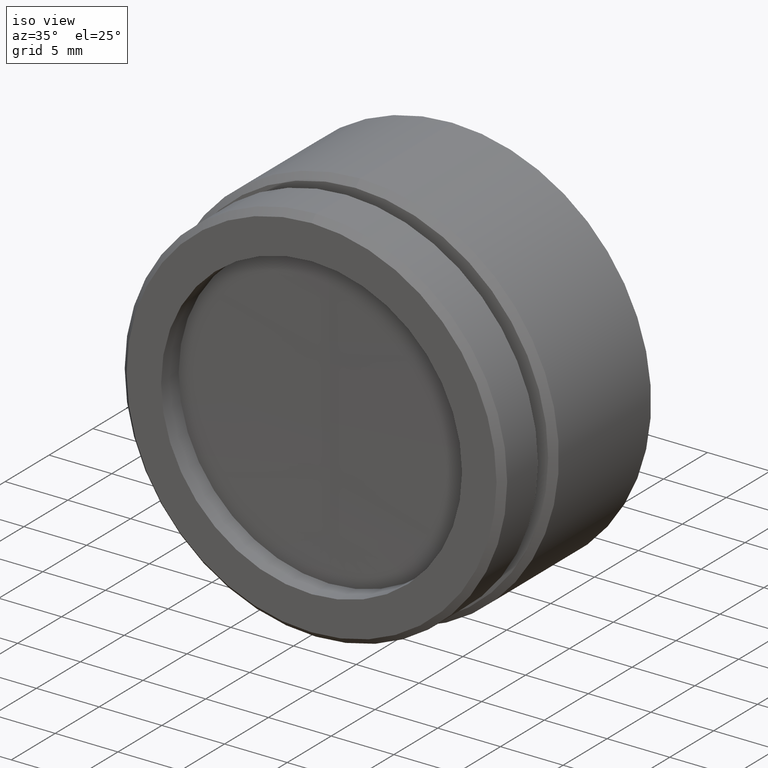
[diagram: clean part render]
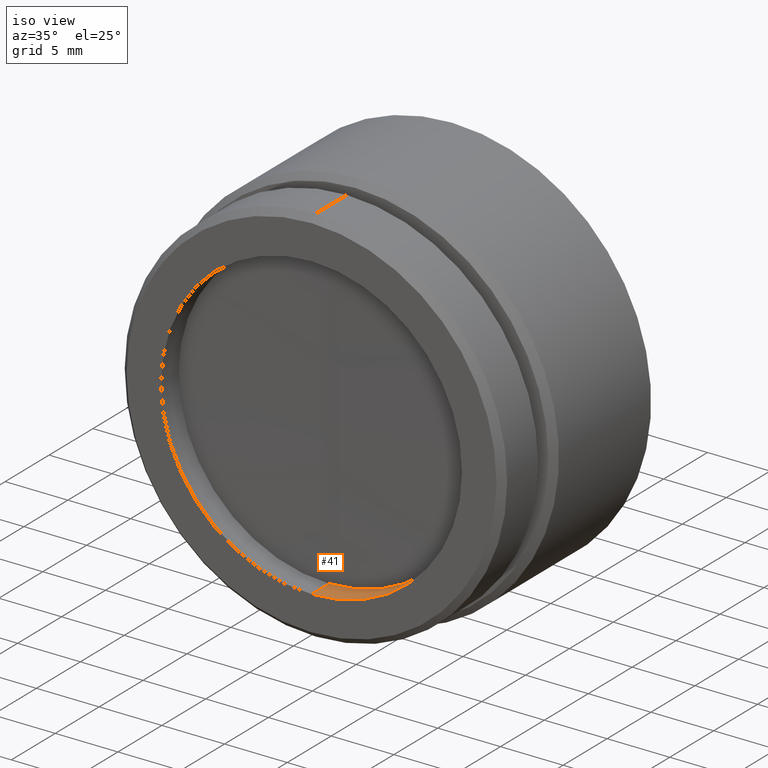
[diagram: same view with one face highlighted and labeled with its STEP entity id]
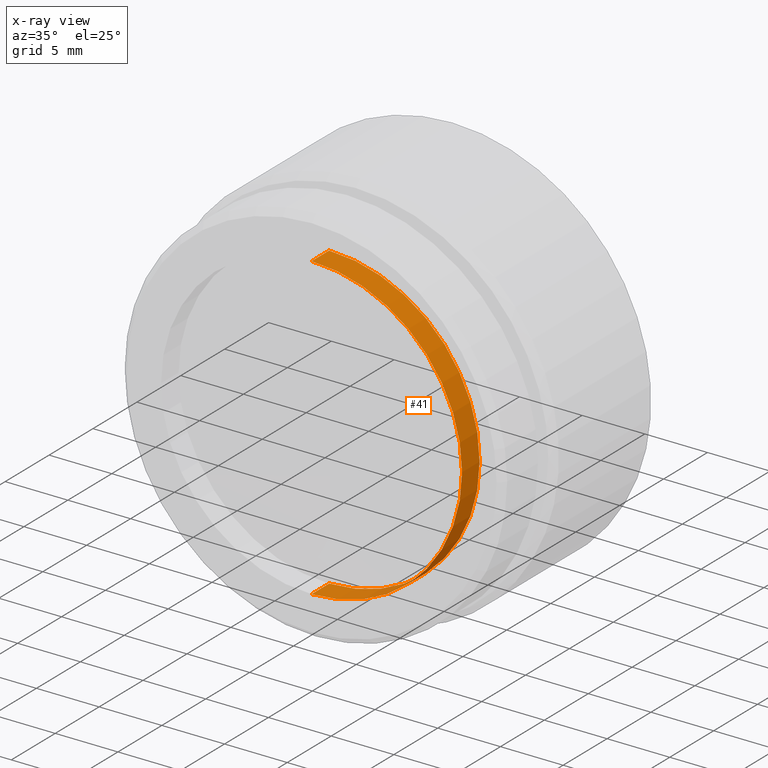
[diagram: x-ray of the same camera — body ghosted, the highlighted face saturated]
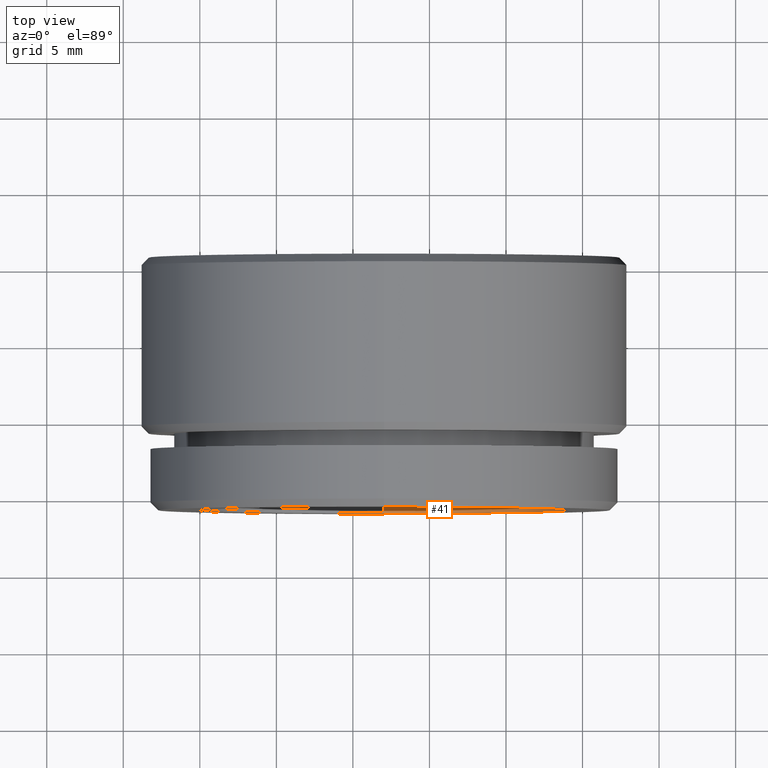
[diagram: same view with one face highlighted and labeled with its STEP entity id]
A machine part, iso view. The second image highlights one B-rep face of the part: STEP entity #41.
The next image is the same camera in x-ray: the body ghosted, the highlighted face saturated — about 0% of this face is hidden behind the body in this view.
A second angle (top view) of the same face is appended — the face is thin or edge-on in the first view.
In plain terms, the highlighted cylindrical surface (partial cylindrical patch) has radius 12 mm, axis along (0, -1, 0).
Its self-contained STEP definition (entity closure, byte-faithful):
#28 = ORIENTED_EDGE ( 'NONE', *, *, #1177, .T. ) ;
#41 = ADVANCED_FACE ( 'NONE', ( #1469 ), #654, .F. ) ;
#107 = AXIS2_PLACEMENT_3D ( 'NONE', #557, #1053, #1493 ) ;
#160 = DIRECTION ( 'NONE',  ( 0.000000000000000000, 0.000000000000000000, -1.000000000000000000 ) ) ;
#173 = EDGE_LOOP ( 'NONE', ( #420, #1049, #28, #829 ) ) ;
#186 = DIRECTION ( 'NONE',  ( 0.000000000000000000, -1.000000000000000000, 0.000000000000000000 ) ) ;
#195 = VERTEX_POINT ( 'NONE', #388 ) ;
#270 = EDGE_CURVE ( 'NONE', #195, #1299, #1442, .T. ) ;
#287 = CARTESIAN_POINT ( 'NONE',  ( -62.96855859389910393, 4.153165921879420353, 31.92647029529263492 ) ) ;
#388 = CARTESIAN_POINT ( 'NONE',  ( -62.96855859389910393, 6.153165921879420353, 31.92647029529263492 ) ) ;
#420 = ORIENTED_EDGE ( 'NONE', *, *, #270, .F. ) ;
#473 = CARTESIAN_POINT ( 'NONE',  ( -62.96855859389910393, 4.153165921879420353, 7.926470295292635804 ) ) ;
#482 = DIRECTION ( 'NONE',  ( 0.000000000000000000, 0.000000000000000000, -1.000000000000000000 ) ) ;
#557 = CARTESIAN_POINT ( 'NONE',  ( -62.96855859389910393, 4.153165921879420353, 19.92647029529263492 ) ) ;
#574 = AXIS2_PLACEMENT_3D ( 'NONE', #1338, #1444, #160 ) ;
#575 = DIRECTION ( 'NONE',  ( 0.000000000000000000, -1.000000000000000000, 0.000000000000000000 ) ) ;
#578 = VECTOR ( 'NONE', #186, 1000.000000000000000 ) ;
#605 = VECTOR ( 'NONE', #575, 1000.000000000000000 ) ;
#654 = CYLINDRICAL_SURFACE ( 'NONE', #1285, 12.00000000000000000 ) ;
#680 = CARTESIAN_POINT ( 'NONE',  ( -62.96855859389910393, 6.153165921879420353, 7.926470295292635804 ) ) ;
#685 = VERTEX_POINT ( 'NONE', #680 ) ;
#716 = EDGE_CURVE ( 'NONE', #1202, #1299, #1184, .T. ) ;
#829 = ORIENTED_EDGE ( 'NONE', *, *, #716, .T. ) ;
#861 = CARTESIAN_POINT ( 'NONE',  ( -62.96855859389910393, 4.153165921879420353, 7.926470295292635804 ) ) ;
#978 = EDGE_CURVE ( 'NONE', #685, #195, #1108, .T. ) ;
#1034 = CARTESIAN_POINT ( 'NONE',  ( -62.96855859389910393, 4.153165921879420353, 19.92647029529263492 ) ) ;
#1049 = ORIENTED_EDGE ( 'NONE', *, *, #978, .F. ) ;
#1053 = DIRECTION ( 'NONE',  ( 0.000000000000000000, -1.000000000000000000, 0.000000000000000000 ) ) ;
#1108 = CIRCLE ( 'NONE', #574, 12.00000000000000000 ) ;
#1118 = DIRECTION ( 'NONE',  ( 0.000000000000000000, -1.000000000000000000, 0.000000000000000000 ) ) ;
#1177 = EDGE_CURVE ( 'NONE', #685, #1202, #1419, .T. ) ;
#1184 = CIRCLE ( 'NONE', #107, 12.00000000000000000 ) ;
#1202 = VERTEX_POINT ( 'NONE', #861 ) ;
#1242 = CARTESIAN_POINT ( 'NONE',  ( -62.96855859389910393, 4.153165921879420353, 31.92647029529263492 ) ) ;
#1285 = AXIS2_PLACEMENT_3D ( 'NONE', #1034, #1118, #482 ) ;
#1299 = VERTEX_POINT ( 'NONE', #287 ) ;
#1338 = CARTESIAN_POINT ( 'NONE',  ( -62.96855859389910393, 6.153165921879420353, 19.92647029529263492 ) ) ;
#1419 = LINE ( 'NONE', #473, #605 ) ;
#1442 = LINE ( 'NONE', #1242, #578 ) ;
#1444 = DIRECTION ( 'NONE',  ( 0.000000000000000000, -1.000000000000000000, 0.000000000000000000 ) ) ;
#1469 = FACE_OUTER_BOUND ( 'NONE', #173, .T. ) ;
#1493 = DIRECTION ( 'NONE',  ( 0.000000000000000000, 0.000000000000000000, -1.000000000000000000 ) ) ;